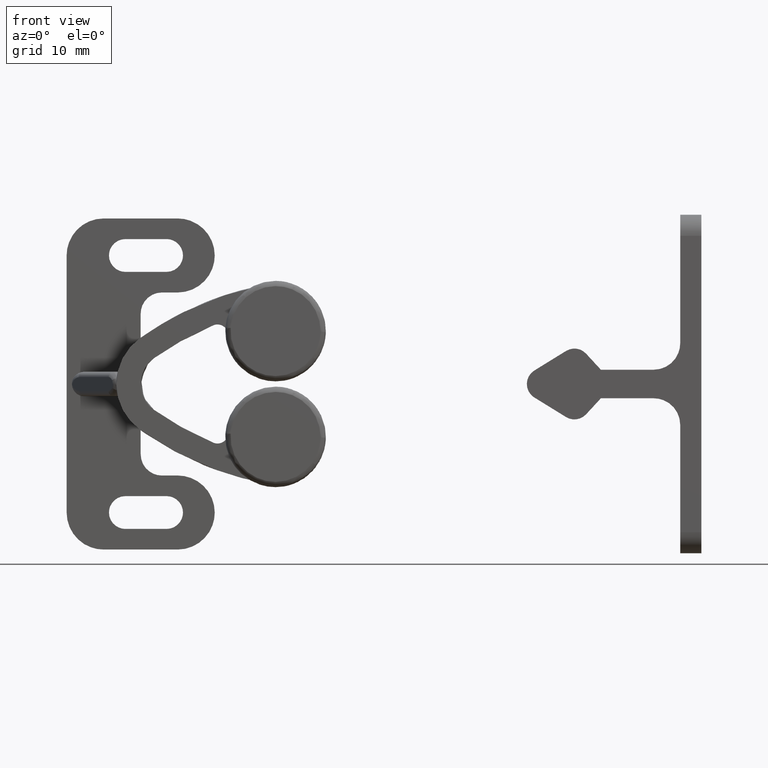
[diagram: clean part render]
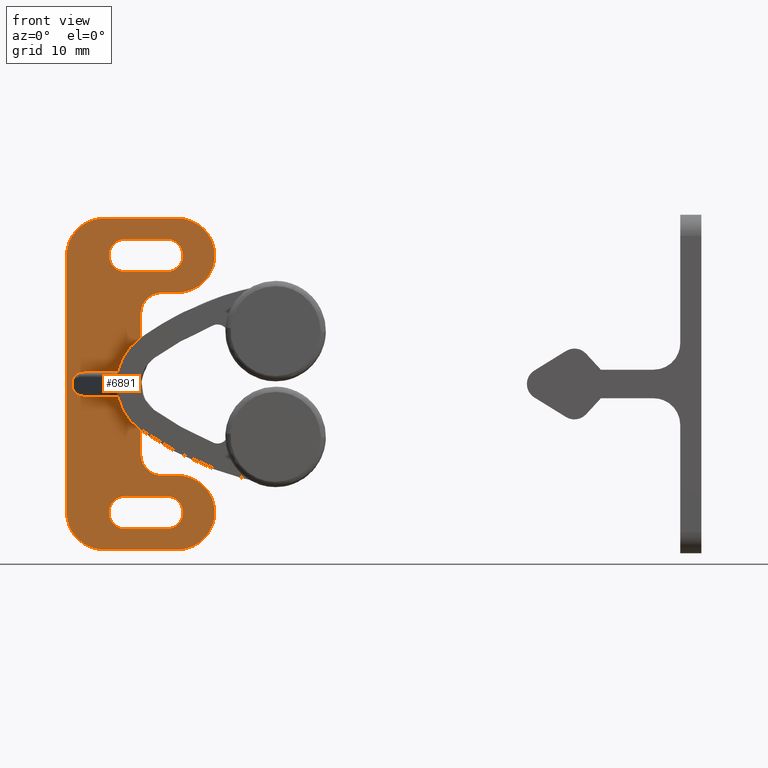
[diagram: same view with one face highlighted and labeled with its STEP entity id]
A machine part, front view. The second image highlights one B-rep face of the part: STEP entity #6891.
In plain terms, the highlighted face is a freeform B-spline surface patch.
Its self-contained STEP definition (entity closure, byte-faithful):
#3261=CARTESIAN_POINT('',(0.645658454701899,-2.300000000000080,0.560176811719487));
#3262=VERTEX_POINT('',#3261);
#3322=CARTESIAN_POINT('',(0.500000000000000,-2.300000000000080,0.0));
#3323=VERTEX_POINT('',#3322);
#3324=CARTESIAN_POINT('',(0.645658454701899,-2.300000000000080,0.560176811719487));
#3325=CARTESIAN_POINT('',(0.551758562767141,-2.300000000000080,0.391823585289309));
#3326=CARTESIAN_POINT('',(0.500000940271381,-2.300000000000080,0.192769288409554));
#3327=CARTESIAN_POINT('',(0.500000000000000,-2.300000000000080,0.0));
#3328=B_SPLINE_CURVE_WITH_KNOTS('',3,(#3324,#3325,#3326,#3327),.UNSPECIFIED.,.F.,.U.,(4,4),(0.0,0.578307865235542),.UNSPECIFIED.);
#3329=EDGE_CURVE('',#3262,#3323,#3328,.T.);
#3782=CARTESIAN_POINT('',(0.645658454701899,-2.300000000000080,-0.560176811719486));
#3783=VERTEX_POINT('',#3782);
#3851=CARTESIAN_POINT('',(0.500000000000000,-2.300000000000080,0.0));
#3852=CARTESIAN_POINT('',(0.500000000251714,-2.300000000000080,-0.192767480835903));
#3853=CARTESIAN_POINT('',(0.551759443255669,-2.300000000000080,-0.391825163918697));
#3854=CARTESIAN_POINT('',(0.645658454701899,-2.300000000000080,-0.560176811719486));
#3855=B_SPLINE_CURVE_WITH_KNOTS('',3,(#3851,#3852,#3853,#3854),.UNSPECIFIED.,.F.,.U.,(4,4),(0.0,0.578302442507709),.UNSPECIFIED.);
#3856=EDGE_CURVE('',#3323,#3783,#3855,.T.);
#3933=CARTESIAN_POINT('',(1.650000000000000,-2.300000000000095,-1.150000000000012));
#3934=VERTEX_POINT('',#3933);
#3940=CARTESIAN_POINT('',(4.826153720805030,-2.300000000000190,-1.150000000000012));
#3941=VERTEX_POINT('',#3940);
#3942=CARTESIAN_POINT('',(1.650000000000000,-2.300000000000095,-1.150000000000012));
#3943=CARTESIAN_POINT('',(4.826153720805030,-2.300000000000190,-1.150000000000012));
#3944=QUASI_UNIFORM_CURVE('',1,(#3942,#3943),.UNSPECIFIED.,.F.,.U.);
#3945=EDGE_CURVE('',#3934,#3941,#3944,.T.);
#3971=CARTESIAN_POINT('',(0.645658454701899,-2.300000000000080,-0.560176811719486));
#3972=CARTESIAN_POINT('',(0.701389225317785,-2.300000000000078,-0.660205155457563));
#3973=CARTESIAN_POINT('',(0.831282015619389,-2.300000000000082,-0.828066260431745));
#3974=CARTESIAN_POINT('',(1.093718340630972,-2.300000000000085,-1.023061504407554));
#3975=CARTESIAN_POINT('',(1.370101936284480,-2.300000000000088,-1.128674574463026));
#3976=CARTESIAN_POINT('',(1.567308729267906,-2.300000000000097,-1.150006792916363));
#3977=CARTESIAN_POINT('',(1.650000000000000,-2.300000000000095,-1.150000000000012));
#3978=B_SPLINE_CURVE_WITH_KNOTS('',3,(#3971,#3972,#3973,#3974,#3975,#3976,#3977),.UNSPECIFIED.,.F.,.U.,(4,1,1,1,4),(0.000000046369776,0.343501662729493,0.629735849961197,0.973254108693616,1.221335242217167),.UNSPECIFIED.);
#3979=EDGE_CURVE('',#3783,#3934,#3978,.T.);
#3989=CARTESIAN_POINT('',(1.650000000000000,-2.300000000000080,1.150000000000000));
#3990=VERTEX_POINT('',#3989);
#4004=CARTESIAN_POINT('',(4.826042582456370,-2.300000000000190,1.150000000000000));
#4005=VERTEX_POINT('',#4004);
#4011=CARTESIAN_POINT('',(4.826042582456370,-2.300000000000190,1.150000000000000));
#4012=CARTESIAN_POINT('',(1.650000000000000,-2.300000000000080,1.150000000000000));
#4013=QUASI_UNIFORM_CURVE('',1,(#4011,#4012),.UNSPECIFIED.,.F.,.U.);
#4014=EDGE_CURVE('',#4005,#3990,#4013,.T.);
#4068=CARTESIAN_POINT('',(9.449999999999999,-2.300000000000080,10.600000000000000));
#4069=VERTEX_POINT('',#4068);
#4075=CARTESIAN_POINT('',(10.999999999999661,-2.300000000000080,12.150001027670511));
#4076=VERTEX_POINT('',#4075);
#4077=CARTESIAN_POINT('',(9.449999999999999,-2.300000000000080,10.600000000000000));
#4078=CARTESIAN_POINT('',(9.602177149971254,-2.300000000000080,10.599930536928140));
#4079=CARTESIAN_POINT('',(9.868431586216131,-2.300000000000075,10.639552144954109));
#4080=CARTESIAN_POINT('',(10.267171764854011,-2.300000000000088,10.810416298582140));
#4081=CARTESIAN_POINT('',(10.567982751226729,-2.300000000000067,11.051129972845670));
#4082=CARTESIAN_POINT('',(10.788031201700161,-2.300000000000088,11.348016448064010));
#4083=CARTESIAN_POINT('',(10.951541804051340,-2.300000000000086,11.693558124671910));
#4084=CARTESIAN_POINT('',(11.000105057543140,-2.300000000000073,11.972453144846700));
#4085=CARTESIAN_POINT('',(10.999999999999661,-2.300000000000080,12.150001027670511));
#4086=B_SPLINE_CURVE_WITH_KNOTS('',3,(#4077,#4078,#4079,#4080,#4081,#4082,#4083,#4084,#4085),.UNSPECIFIED.,.F.,.U.,(4,1,1,1,1,1,4),(0.000000022200147,0.456518275020949,0.798923154681922,1.293483531110821,1.597827588192030,1.902187545388987,2.434795982945142),.UNSPECIFIED.);
#4087=EDGE_CURVE('',#4069,#4076,#4086,.T.);
#4089=CARTESIAN_POINT('',(9.449999999999999,-2.300000000000080,13.699999999999999));
#4090=VERTEX_POINT('',#4089);
#4091=CARTESIAN_POINT('',(10.999999999999661,-2.300000000000080,12.150001027670511));
#4092=CARTESIAN_POINT('',(11.000069330584971,-2.300000000000075,12.302176949929351));
#4093=CARTESIAN_POINT('',(10.960454844773460,-2.300000000000090,12.568439446585820));
#4094=CARTESIAN_POINT('',(10.824724731429431,-2.300000000000071,12.885049670031581));
#4095=CARTESIAN_POINT('',(10.655173350763080,-2.300000000000086,13.138790051465140));
#4096=CARTESIAN_POINT('',(10.468071242203930,-2.300000000000076,13.330547892585930));
#4097=CARTESIAN_POINT('',(10.228956513447111,-2.300000000000084,13.498938378496550));
#4098=CARTESIAN_POINT('',(9.906441741703230,-2.300000000000079,13.651514216303861));
#4099=CARTESIAN_POINT('',(9.627551603005237,-2.300000000000078,13.700137135337190));
#4100=CARTESIAN_POINT('',(9.449999999999999,-2.300000000000080,13.699999999999999));
#4101=B_SPLINE_CURVE_WITH_KNOTS('',3,(#4091,#4092,#4093,#4094,#4095,#4096,#4097,#4098,#4099,#4100),.UNSPECIFIED.,.F.,.U.,(4,1,1,1,1,1,1,4),(0.000000023607692,0.456518058999902,0.798922775865073,1.027182614871743,1.369567845664469,1.597826828413437,1.902186640050886,2.434794824492096),.UNSPECIFIED.);
#4102=EDGE_CURVE('',#4076,#4090,#4101,.T.);
#4125=CARTESIAN_POINT('',(5.550000000000000,-2.300000000000080,13.699999999999999));
#4126=VERTEX_POINT('',#4125);
#4127=CARTESIAN_POINT('',(5.550000000000000,-2.300000000000080,13.699999999999999));
#4128=CARTESIAN_POINT('',(9.449999999999999,-2.300000000000080,13.699999999999999));
#4129=QUASI_UNIFORM_CURVE('',1,(#4127,#4128),.UNSPECIFIED.,.F.,.U.);
#4130=EDGE_CURVE('',#4126,#4090,#4129,.T.);
#4188=CARTESIAN_POINT('',(4.000000000000341,-2.300000000000080,12.149998972329490));
#4189=VERTEX_POINT('',#4188);
#4190=CARTESIAN_POINT('',(5.550000000000000,-2.300000000000080,13.699999999999999));
#4191=CARTESIAN_POINT('',(5.372449373761465,-2.300000000000077,13.700125088298551));
#4192=CARTESIAN_POINT('',(5.080879529892909,-2.300000000000090,13.649316361167889));
#4193=CARTESIAN_POINT('',(4.725447667514830,-2.300000000000072,13.475808313689100));
#4194=CARTESIAN_POINT('',(4.484368521020827,-2.300000000000086,13.287656417320610));
#4195=CARTESIAN_POINT('',(4.290457954402084,-2.300000000000083,13.068355614189990));
#4196=CARTESIAN_POINT('',(4.139778663830710,-2.300000000000063,12.816984194742640));
#4197=CARTESIAN_POINT('',(4.028171206521701,-2.300000000000090,12.505051269450300));
#4198=CARTESIAN_POINT('',(3.999970140435558,-2.300000000000084,12.276807280935540));
#4199=CARTESIAN_POINT('',(4.000000000000341,-2.300000000000080,12.149998972329490));
#4200=B_SPLINE_CURVE_WITH_KNOTS('',3,(#4190,#4191,#4192,#4193,#4194,#4195,#4196,#4197,#4198,#4199),.UNSPECIFIED.,.F.,.U.,(4,1,1,1,1,1,1,4),(0.000000022198980,0.532608769133054,0.875010836173164,1.179354542480120,1.445653777580748,1.750006441966814,2.054366398546180,2.434795982945150),.UNSPECIFIED.);
#4201=EDGE_CURVE('',#4126,#4189,#4200,.T.);
#4203=CARTESIAN_POINT('',(5.550000000000000,-2.300000000000080,10.600000000000000));
#4204=VERTEX_POINT('',#4203);
#4205=CARTESIAN_POINT('',(4.000000000000341,-2.300000000000080,12.149998972329490));
#4206=CARTESIAN_POINT('',(3.999930216898552,-2.300000000000078,11.997821965764130));
#4207=CARTESIAN_POINT('',(4.039551737775362,-2.300000000000084,11.731567790264890));
#4208=CARTESIAN_POINT('',(4.210416834069042,-2.300000000000077,11.332828047303909));
#4209=CARTESIAN_POINT('',(4.451125441815677,-2.300000000000077,11.032012770553170));
#4210=CARTESIAN_POINT('',(4.727549524928079,-2.300000000000090,10.827157905546660));
#4211=CARTESIAN_POINT('',(5.068249795003972,-2.300000000000069,10.655563725067690));
#4212=CARTESIAN_POINT('',(5.347062281753838,-2.300000000000080,10.599779297328990));
#4213=CARTESIAN_POINT('',(5.550000000000000,-2.300000000000080,10.600000000000000));
#4214=B_SPLINE_CURVE_WITH_KNOTS('',3,(#4205,#4206,#4207,#4208,#4209,#4210,#4211,#4212,#4213),.UNSPECIFIED.,.F.,.U.,(4,1,1,1,1,1,4),(0.000000023608442,0.456518059000605,0.798922775865717,1.293482918502102,1.597826828413798,1.826096124500463,2.434794824492075),.UNSPECIFIED.);
#4215=EDGE_CURVE('',#4189,#4204,#4214,.T.);
#4236=CARTESIAN_POINT('',(9.449999999999999,-2.300000000000080,10.600000000000000));
#4237=CARTESIAN_POINT('',(5.550000000000000,-2.300000000000080,10.600000000000000));
#4238=QUASI_UNIFORM_CURVE('',1,(#4236,#4237),.UNSPECIFIED.,.F.,.U.);
#4239=EDGE_CURVE('',#4069,#4204,#4238,.T.);
#4295=CARTESIAN_POINT('',(9.449999999999999,-2.300000000000080,-13.699600000000000));
#4296=VERTEX_POINT('',#4295);
#4302=CARTESIAN_POINT('',(10.999999999999661,-2.300000000000080,-12.149598972329491));
#4303=VERTEX_POINT('',#4302);
#4304=CARTESIAN_POINT('',(9.449999999999999,-2.300000000000080,-13.699600000000000));
#4305=CARTESIAN_POINT('',(9.602177428811672,-2.300000000000078,-13.699662126244631));
#4306=CARTESIAN_POINT('',(9.843073335582963,-2.300000000000086,-13.663824337130411));
#4307=CARTESIAN_POINT('',(10.162154875503671,-2.300000000000075,-13.536199406452830));
#4308=CARTESIAN_POINT('',(10.420527636405520,-2.300000000000082,-13.372602259801210));
#4309=CARTESIAN_POINT('',(10.648815939485910,-2.300000000000080,-13.149850438574861));
#4310=CARTESIAN_POINT('',(10.839965599632061,-2.300000000000074,-12.863791562468769));
#4311=CARTESIAN_POINT('',(10.968710542646740,-2.300000000000098,-12.530018282327619));
#4312=CARTESIAN_POINT('',(11.000033648026101,-2.300000000000066,-12.276408424636220));
#4313=CARTESIAN_POINT('',(10.999999999999661,-2.300000000000080,-12.149598972329491));
#4314=B_SPLINE_CURVE_WITH_KNOTS('',3,(#4304,#4305,#4306,#4307,#4308,#4309,#4310,#4311,#4312,#4313),.UNSPECIFIED.,.F.,.U.,(4,1,1,1,1,1,1,4),(0.000000022199703,0.456518275020522,0.722834304823640,1.027183101615401,1.369568494966837,1.673916480986660,2.054366398546098,2.434795982945160),.UNSPECIFIED.);
#4315=EDGE_CURVE('',#4296,#4303,#4314,.T.);
#4317=CARTESIAN_POINT('',(9.449999999999999,-2.300000000000080,-10.599600000000001));
#4318=VERTEX_POINT('',#4317);
#4319=CARTESIAN_POINT('',(10.999999999999661,-2.300000000000080,-12.149598972329491));
#4320=CARTESIAN_POINT('',(11.000010600235131,-2.300000000000082,-12.048155527955871));
#4321=CARTESIAN_POINT('',(10.978772699831440,-2.300000000000078,-11.832579409002960));
#4322=CARTESIAN_POINT('',(10.882448693073179,-2.300000000000081,-11.528512582527791));
#4323=CARTESIAN_POINT('',(10.719153700720931,-2.300000000000078,-11.240247596925700));
#4324=CARTESIAN_POINT('',(10.507865582632030,-2.300000000000084,-11.001307510785640));
#4325=CARTESIAN_POINT('',(10.252000119653850,-2.300000000000071,-10.811552552739380));
#4326=CARTESIAN_POINT('',(9.906436171796388,-2.300000000000106,-10.648088434124009));
#4327=CARTESIAN_POINT('',(9.627553920787014,-2.300000000000047,-10.599461728474290));
#4328=CARTESIAN_POINT('',(9.449999999999999,-2.300000000000080,-10.599600000000001));
#4329=B_SPLINE_CURVE_WITH_KNOTS('',3,(#4319,#4320,#4321,#4322,#4323,#4324,#4325,#4326,#4327,#4328),.UNSPECIFIED.,.F.,.U.,(4,1,1,1,1,1,1,4),(0.000000023608866,0.304338703581390,0.646744180293303,0.951096932577137,1.293482918502487,1.597826828414154,1.902186640051371,2.434794824492057),.UNSPECIFIED.);
#4330=EDGE_CURVE('',#4303,#4318,#4329,.T.);
#4352=CARTESIAN_POINT('',(5.550000000000000,-2.300000000000080,-13.699600000000000));
#4353=VERTEX_POINT('',#4352);
#4359=CARTESIAN_POINT('',(5.550000000000000,-2.300000000000080,-13.699600000000000));
#4360=CARTESIAN_POINT('',(9.449999999999999,-2.300000000000080,-13.699600000000000));
#4361=QUASI_UNIFORM_CURVE('',1,(#4359,#4360),.UNSPECIFIED.,.F.,.U.);
#4362=EDGE_CURVE('',#4353,#4296,#4361,.T.);
#4416=CARTESIAN_POINT('',(5.550000000000000,-2.300000000000080,-10.599600000000001));
#4417=VERTEX_POINT('',#4416);
#4423=CARTESIAN_POINT('',(4.000000000000340,-2.300000000000079,-12.149601027670510));
#4424=VERTEX_POINT('',#4423);
#4425=CARTESIAN_POINT('',(5.550000000000000,-2.300000000000080,-10.599600000000001));
#4426=CARTESIAN_POINT('',(5.448556043860420,-2.300000000000079,-10.599589607299681));
#4427=CARTESIAN_POINT('',(5.232980630950999,-2.300000000000081,-10.620828008075531));
#4428=CARTESIAN_POINT('',(4.928913164262871,-2.300000000000080,-10.717151521429860));
#4429=CARTESIAN_POINT('',(4.640648421576642,-2.300000000000076,-10.880447111473950));
#4430=CARTESIAN_POINT('',(4.401708507191095,-2.300000000000086,-11.091734918229481));
#4431=CARTESIAN_POINT('',(4.211952718647847,-2.300000000000060,-11.347600881675060));
#4432=CARTESIAN_POINT('',(4.048488588707504,-2.300000000000106,-11.693164554255590));
#4433=CARTESIAN_POINT('',(3.999861657463857,-2.300000000000050,-11.972047003900309));
#4434=CARTESIAN_POINT('',(4.000000000000340,-2.300000000000079,-12.149601027670510));
#4435=B_SPLINE_CURVE_WITH_KNOTS('',3,(#4425,#4426,#4427,#4428,#4429,#4430,#4431,#4432,#4433,#4434),.UNSPECIFIED.,.F.,.U.,(4,1,1,1,1,1,1,4),(0.000000022200773,0.304338847109662,0.646744486842177,0.951097383423423,1.293483531110937,1.597827588192091,1.902187545389026,2.434795982945147),.UNSPECIFIED.);
#4436=EDGE_CURVE('',#4417,#4424,#4435,.T.);
#4438=CARTESIAN_POINT('',(4.000000000000340,-2.300000000000079,-12.149601027670510));
#4439=CARTESIAN_POINT('',(3.999873652295324,-2.300000000000077,-12.327151886558321));
#4440=CARTESIAN_POINT('',(4.050684294561247,-2.300000000000079,-12.618720712753261));
#4441=CARTESIAN_POINT('',(4.224190736867698,-2.300000000000083,-12.974153683424101));
#4442=CARTESIAN_POINT('',(4.412343261715545,-2.300000000000074,-13.215231858933450));
#4443=CARTESIAN_POINT('',(4.631643253695056,-2.300000000000077,-13.409142823036619));
#4444=CARTESIAN_POINT('',(4.883015102655911,-2.300000000000097,-13.559821496972820));
#4445=CARTESIAN_POINT('',(5.194947954438862,-2.300000000000065,-13.671428941270941));
#4446=CARTESIAN_POINT('',(5.423191761721711,-2.300000000000092,-13.699629633525261));
#4447=CARTESIAN_POINT('',(5.550000000000000,-2.300000000000080,-13.699600000000000));
#4448=B_SPLINE_CURVE_WITH_KNOTS('',3,(#4438,#4439,#4440,#4441,#4442,#4443,#4444,#4445,#4446,#4447),.UNSPECIFIED.,.F.,.U.,(4,1,1,1,1,1,1,4),(0.000000023607901,0.532608516883788,0.875010421306120,1.179353984185056,1.445653091455672,1.750005609037761,2.054365421293856,2.434794824492080),.UNSPECIFIED.);
#4449=EDGE_CURVE('',#4424,#4353,#4448,.T.);
#4466=CARTESIAN_POINT('',(9.449999999999999,-2.300000000000080,-10.599600000000001));
#4467=CARTESIAN_POINT('',(5.550000000000000,-2.300000000000080,-10.599600000000001));
#4468=QUASI_UNIFORM_CURVE('',1,(#4466,#4467),.UNSPECIFIED.,.F.,.U.);
#4469=EDGE_CURVE('',#4318,#4417,#4468,.T.);
#4489=CARTESIAN_POINT('',(7.0,-2.300000000000080,6.650000000000000));
#4490=VERTEX_POINT('',#4489);
#4496=CARTESIAN_POINT('',(7.0,-2.300000000000080,-6.649600000000000));
#4497=VERTEX_POINT('',#4496);
#4498=CARTESIAN_POINT('',(7.0,-2.300000000000080,6.650000000000000));
#4499=CARTESIAN_POINT('',(7.0,-2.300000000000080,-6.649600000000000));
#4500=QUASI_UNIFORM_CURVE('',1,(#4498,#4499),.UNSPECIFIED.,.F.,.U.);
#4501=EDGE_CURVE('',#4490,#4497,#4500,.T.);
#4539=CARTESIAN_POINT('',(9.0,-2.300000000000080,8.650000000000000));
#4540=VERTEX_POINT('',#4539);
#4546=CARTESIAN_POINT('',(9.0,-2.300000000000080,8.650000000000000));
#4547=CARTESIAN_POINT('',(8.770895350710701,-2.300000000000091,8.650180220129471));
#4548=CARTESIAN_POINT('',(8.443768936677783,-2.300000000000070,8.593131583594584));
#4549=CARTESIAN_POINT('',(8.008786856873487,-2.300000000000084,8.400282633075559));
#4550=CARTESIAN_POINT('',(7.649004680101991,-2.300000000000069,8.153539715954167));
#4551=CARTESIAN_POINT('',(7.328338382828942,-2.300000000000106,7.786339593424384));
#4552=CARTESIAN_POINT('',(7.069287545630592,-2.300000000000055,7.271650263681480));
#4553=CARTESIAN_POINT('',(6.999795408233823,-2.300000000000098,6.887289878593142));
#4554=CARTESIAN_POINT('',(7.0,-2.300000000000080,6.650000000000000));
#4555=B_SPLINE_CURVE_WITH_KNOTS('',3,(#4546,#4547,#4548,#4549,#4550,#4551,#4552,#4553,#4554),.UNSPECIFIED.,.F.,.U.,(4,1,1,1,1,1,4),(0.000000074894063,0.687225763535501,0.981758553000316,1.423561211544995,1.988040511486450,2.429842028713400,3.141612365757113),.UNSPECIFIED.);
#4556=EDGE_CURVE('',#4540,#4490,#4555,.T.);
#4574=CARTESIAN_POINT('',(10.500000000000000,-2.300000000000080,8.650000000000000));
#4575=VERTEX_POINT('',#4574);
#4581=CARTESIAN_POINT('',(10.500000000000000,-2.300000000000080,8.650000000000000));
#4582=CARTESIAN_POINT('',(9.0,-2.300000000000080,8.650000000000000));
#4583=QUASI_UNIFORM_CURVE('',1,(#4581,#4582),.UNSPECIFIED.,.F.,.U.);
#4584=EDGE_CURVE('',#4575,#4540,#4583,.T.);
#4640=CARTESIAN_POINT('',(10.500000000000000,-2.300000000000080,15.650000000000000));
#4641=VERTEX_POINT('',#4640);
#4647=CARTESIAN_POINT('',(13.999999999999931,-2.300000000000079,12.150000670134700));
#4648=VERTEX_POINT('',#4647);
#4649=CARTESIAN_POINT('',(13.999999999999931,-2.300000000000079,12.150000670134700));
#4650=CARTESIAN_POINT('',(14.000045301527910,-2.300000000000080,12.407712236906470));
#4651=CARTESIAN_POINT('',(13.947571989546800,-2.300000000000080,12.880152629483600));
#4652=CARTESIAN_POINT('',(13.713023458982869,-2.300000000000079,13.605200711065310));
#4653=CARTESIAN_POINT('',(13.299051695778781,-2.300000000000088,14.315634596707669));
#4654=CARTESIAN_POINT('',(12.706481093302219,-2.300000000000071,14.908155415957291));
#4655=CARTESIAN_POINT('',(12.032806074181281,-2.300000000000077,15.323189017847319));
#4656=CARTESIAN_POINT('',(11.316044448660429,-2.300000000000087,15.584627173145110));
#4657=CARTESIAN_POINT('',(10.786346943229720,-2.300000000000049,15.650068263232960));
#4658=CARTESIAN_POINT('',(10.500000000000000,-2.300000000000080,15.650000000000000));
#4659=B_SPLINE_CURVE_WITH_KNOTS('',3,(#4649,#4650,#4651,#4652,#4653,#4654,#4655,#4656,#4657,#4658),.UNSPECIFIED.,.F.,.U.,(4,1,1,1,1,1,1,4),(0.000000061555598,0.773127522442387,1.417407895740149,2.276444875302687,3.221378392386046,3.908603319438634,4.638796333892150,5.497821262364265),.UNSPECIFIED.);
#4660=EDGE_CURVE('',#4648,#4641,#4659,.T.);
#4662=CARTESIAN_POINT('',(10.500000000000000,-2.300000000000080,8.650000000000000));
#4663=CARTESIAN_POINT('',(10.786348004934020,-2.300000000000083,8.649932591986387));
#4664=CARTESIAN_POINT('',(11.258772709439789,-2.300000000000070,8.708320576216682));
#4665=CARTESIAN_POINT('',(11.925670607395389,-2.300000000000099,8.933179682536430));
#4666=CARTESIAN_POINT('',(12.467621034880210,-2.300000000000023,9.231466846871312));
#4667=CARTESIAN_POINT('',(12.978602636433120,-2.300000000000167,9.650814229288109));
#4668=CARTESIAN_POINT('',(13.376880229362319,-2.299999999999951,10.124155464581730));
#4669=CARTESIAN_POINT('',(13.663080735880040,-2.300000000000224,10.622293016710170));
#4670=CARTESIAN_POINT('',(13.920243241340019,-2.299999999999958,11.276740487592580));
#4671=CARTESIAN_POINT('',(14.000169397949900,-2.300000000000141,11.792046803519940));
#4672=CARTESIAN_POINT('',(13.999999999999931,-2.300000000000079,12.150000670134700));
#4673=B_SPLINE_CURVE_WITH_KNOTS('',3,(#4662,#4663,#4664,#4665,#4666,#4667,#4668,#4669,#4670,#4671,#4672),.UNSPECIFIED.,.F.,.U.,(4,1,1,1,1,1,1,1,4),(0.000000061315972,0.859026330035002,1.417408090285178,2.104638401593760,2.705977362098832,3.393181725469709,3.951557938601835,4.424029377765240,5.497822017767022),.UNSPECIFIED.);
#4674=EDGE_CURVE('',#4575,#4648,#4673,.T.);
#4692=CARTESIAN_POINT('',(3.500000000000000,-2.300000000000080,15.650000000000000));
#4693=VERTEX_POINT('',#4692);
#4699=CARTESIAN_POINT('',(3.500000000000000,-2.300000000000080,15.650000000000000));
#4700=CARTESIAN_POINT('',(10.500000000000000,-2.300000000000080,15.650000000000000));
#4701=QUASI_UNIFORM_CURVE('',1,(#4699,#4700),.UNSPECIFIED.,.F.,.U.);
#4702=EDGE_CURVE('',#4693,#4641,#4701,.T.);
#4738=CARTESIAN_POINT('',(0.0,-2.300000000000080,12.150000000000000));
#4739=VERTEX_POINT('',#4738);
#4745=CARTESIAN_POINT('',(3.500000000000000,-2.300000000000080,15.650000000000000));
#4746=CARTESIAN_POINT('',(3.242291988536481,-2.300000000000085,15.650034767766201));
#4747=CARTESIAN_POINT('',(2.683925245733753,-2.300000000000072,15.588098764425290));
#4748=CARTESIAN_POINT('',(1.910855579898648,-2.300000000000084,15.306169748073801));
#4749=CARTESIAN_POINT('',(1.276112229303821,-2.300000000000074,14.881949389679971));
#4750=CARTESIAN_POINT('',(0.778206470784862,-2.300000000000091,14.384052208078080));
#4751=CARTESIAN_POINT('',(0.431168658413842,-2.300000000000073,13.871501150559141));
#4752=CARTESIAN_POINT('',(0.186842400927953,-2.300000000000073,13.320259610751920));
#4753=CARTESIAN_POINT('',(0.037014173791768,-2.300000000000084,12.765628265720141));
#4754=CARTESIAN_POINT('',(-0.000023148868590,-2.300000000000079,12.364757116957010));
#4755=CARTESIAN_POINT('',(0.0,-2.300000000000080,12.150000000000000));
#4756=B_SPLINE_CURVE_WITH_KNOTS('',3,(#4745,#4746,#4747,#4748,#4749,#4750,#4751,#4752,#4753,#4754,#4755),.UNSPECIFIED.,.F.,.U.,(4,1,1,1,1,1,1,1,4),(0.000000061435533,0.773127575410295,1.675119705516017,2.448258145096077,3.049564662217882,3.779746846921648,4.295174822090905,4.853550996497727,5.497821640065657),.UNSPECIFIED.);
#4757=EDGE_CURVE('',#4693,#4739,#4756,.T.);
#4775=CARTESIAN_POINT('',(0.0,-2.300000000000080,-12.149600000000000));
#4776=VERTEX_POINT('',#4775);
#4782=CARTESIAN_POINT('',(0.0,-2.300000000000080,-12.149600000000000));
#4783=CARTESIAN_POINT('',(0.0,-2.300000000000080,12.150000000000000));
#4784=QUASI_UNIFORM_CURVE('',1,(#4782,#4783),.UNSPECIFIED.,.F.,.U.);
#4785=EDGE_CURVE('',#4776,#4739,#4784,.T.);
#4821=CARTESIAN_POINT('',(3.500000000000000,-2.300000000000080,-15.649600000000000));
#4822=VERTEX_POINT('',#4821);
#4828=CARTESIAN_POINT('',(0.0,-2.300000000000080,-12.149600000000000));
#4829=CARTESIAN_POINT('',(-0.000122631071718,-2.300000000000087,-12.478906921594850));
#4830=CARTESIAN_POINT('',(0.075328087931255,-2.300000000000067,-13.008568881687831));
#4831=CARTESIAN_POINT('',(0.328796278380991,-2.300000000000095,-13.665508185739609));
#4832=CARTESIAN_POINT('',(0.646839575750166,-2.300000000000061,-14.211264475948679));
#4833=CARTESIAN_POINT('',(1.107821446206418,-2.300000000000100,-14.745759142228071));
#4834=CARTESIAN_POINT('',(1.712635197312910,-2.300000000000062,-15.188550449230620));
#4835=CARTESIAN_POINT('',(2.289429699464202,-2.300000000000082,-15.448422376066580));
#4836=CARTESIAN_POINT('',(2.870063632049581,-2.300000000000110,-15.609110095839480));
#4837=CARTESIAN_POINT('',(3.256609002128737,-2.300000000000066,-15.649634699212530));
#4838=CARTESIAN_POINT('',(3.500000000000000,-2.300000000000080,-15.649600000000000));
#4839=B_SPLINE_CURVE_WITH_KNOTS('',3,(#4828,#4829,#4830,#4831,#4832,#4833,#4834,#4835,#4836,#4837,#4838),.UNSPECIFIED.,.F.,.U.,(4,1,1,1,1,1,1,1,4),(0.000000061436183,0.987882808921427,1.589218271930889,2.104638257249981,2.877751714434648,3.693845731916148,4.338128901103085,4.767652720396304,5.497821640065653),.UNSPECIFIED.);
#4840=EDGE_CURVE('',#4776,#4822,#4839,.T.);
#4858=CARTESIAN_POINT('',(10.500000000000000,-2.300000000000080,-15.649600000000000));
#4859=VERTEX_POINT('',#4858);
#4865=CARTESIAN_POINT('',(10.500000000000000,-2.300000000000080,-15.649600000000000));
#4866=CARTESIAN_POINT('',(3.500000000000000,-2.300000000000080,-15.649600000000000));
#4867=QUASI_UNIFORM_CURVE('',1,(#4865,#4866),.UNSPECIFIED.,.F.,.U.);
#4868=EDGE_CURVE('',#4859,#4822,#4867,.T.);
#4924=CARTESIAN_POINT('',(10.500000000000000,-2.300000000000080,-8.649600000000000));
#4925=VERTEX_POINT('',#4924);
#4931=CARTESIAN_POINT('',(13.999999999999931,-2.300000000000079,-12.149599329865300));
#4932=VERTEX_POINT('',#4931);
#4933=CARTESIAN_POINT('',(13.999999999999931,-2.300000000000079,-12.149599329865300));
#4934=CARTESIAN_POINT('',(14.000119007845081,-2.300000000000080,-11.820295582533911));
#4935=CARTESIAN_POINT('',(13.918566992130680,-2.300000000000078,-11.247675238442699));
#4936=CARTESIAN_POINT('',(13.630900760504799,-2.300000000000083,-10.541033671143200));
#4937=CARTESIAN_POINT('',(13.320531986943040,-2.300000000000077,-10.057560913399790));
#4938=CARTESIAN_POINT('',(12.955146973172431,-2.300000000000089,-9.633951391846029));
#4939=CARTESIAN_POINT('',(12.525847576117000,-2.300000000000046,-9.272720607975463));
#4940=CARTESIAN_POINT('',(12.015254352003170,-2.300000000000133,-8.979355898546974));
#4941=CARTESIAN_POINT('',(11.358954341390090,-2.300000000000031,-8.726123966692496));
#4942=CARTESIAN_POINT('',(10.843629620234600,-2.300000000000108,-8.649456659479842));
#4943=CARTESIAN_POINT('',(10.500000000000000,-2.300000000000080,-8.649600000000000));
#4944=B_SPLINE_CURVE_WITH_KNOTS('',3,(#4933,#4934,#4935,#4936,#4937,#4938,#4939,#4940,#4941,#4942,#4943),.UNSPECIFIED.,.F.,.U.,(4,1,1,1,1,1,1,1,4),(0.000000061547234,0.987882741147319,1.718075340858928,2.276444875298155,2.705976990958611,3.393181259820854,3.951557395505859,4.466985335243474,5.497821262364293),.UNSPECIFIED.);
#4945=EDGE_CURVE('',#4932,#4925,#4944,.T.);
#4947=CARTESIAN_POINT('',(10.500000000000000,-2.300000000000080,-15.649600000000000));
#4948=CARTESIAN_POINT('',(10.700440825450400,-2.300000000000081,-15.649616286993400));
#4949=CARTESIAN_POINT('',(11.101315196430701,-2.300000000000078,-15.615072153390180));
#4950=CARTESIAN_POINT('',(11.684928961722990,-2.300000000000079,-15.461258473348000));
#4951=CARTESIAN_POINT('',(12.285931896180420,-2.300000000000079,-15.186009765237729));
#4952=CARTESIAN_POINT('',(12.787908279989820,-2.300000000000086,-14.823163975300311));
#4953=CARTESIAN_POINT('',(13.255972270160781,-2.300000000000072,-14.337563575831981));
#4954=CARTESIAN_POINT('',(13.600073894212350,-2.300000000000094,-13.822553763962871));
#4955=CARTESIAN_POINT('',(13.913562278102599,-2.300000000000068,-13.065797971343271));
#4956=CARTESIAN_POINT('',(14.000178391663461,-2.300000000000088,-12.507554513220080));
#4957=CARTESIAN_POINT('',(13.999999999999931,-2.300000000000079,-12.149599329865300));
#4958=B_SPLINE_CURVE_WITH_KNOTS('',3,(#4947,#4948,#4949,#4950,#4951,#4952,#4953,#4954,#4955,#4956,#4957),.UNSPECIFIED.,.F.,.U.,(4,1,1,1,1,1,1,1,4),(0.000000061324497,0.601322599850270,1.202648084702446,1.803974373422532,2.577108431560351,3.049564872083557,3.822703678127683,4.424029377767000,5.497822017766968),.UNSPECIFIED.);
#4959=EDGE_CURVE('',#4859,#4932,#4958,.T.);
#4977=CARTESIAN_POINT('',(9.0,-2.300000000000080,-8.649600000000000));
#4978=VERTEX_POINT('',#4977);
#4984=CARTESIAN_POINT('',(9.0,-2.300000000000080,-8.649600000000000));
#4985=CARTESIAN_POINT('',(10.500000000000000,-2.300000000000080,-8.649600000000000));
#4986=QUASI_UNIFORM_CURVE('',1,(#4984,#4985),.UNSPECIFIED.,.F.,.U.);
#4987=EDGE_CURVE('',#4978,#4925,#4986,.T.);
#5020=CARTESIAN_POINT('',(7.0,-2.300000000000080,-6.649600000000000));
#5021=CARTESIAN_POINT('',(6.999982157624480,-2.300000000000084,-6.805037157573642));
#5022=CARTESIAN_POINT('',(7.042109634334373,-2.300000000000071,-7.165030592779471));
#5023=CARTESIAN_POINT('',(7.238688230063568,-2.300000000000087,-7.648051790452512));
#5024=CARTESIAN_POINT('',(7.550496571111960,-2.300000000000077,-8.052536256276143));
#5025=CARTESIAN_POINT('',(7.944961676312483,-2.300000000000099,-8.376350725853452));
#5026=CARTESIAN_POINT('',(8.435484056431639,-2.300000000000042,-8.597418200720790));
#5027=CARTESIAN_POINT('',(8.820016315499132,-2.300000000000106,-8.649637166885926));
#5028=CARTESIAN_POINT('',(9.0,-2.300000000000080,-8.649600000000000));
#5029=B_SPLINE_CURVE_WITH_KNOTS('',3,(#5020,#5021,#5022,#5023,#5024,#5025,#5026,#5027,#5028),.UNSPECIFIED.,.F.,.U.,(4,1,1,1,1,1,4),(0.000000074898581,0.466324219751527,1.079931690375880,1.546284991674121,1.988040511487677,2.601650445291360,3.141612365757086),.UNSPECIFIED.);
#5030=EDGE_CURVE('',#4497,#4978,#5029,.T.);
#5539=CARTESIAN_POINT('',(6.999829873938309,-2.300000000000095,-4.370067139208510));
#5540=VERTEX_POINT('',#5539);
#5546=CARTESIAN_POINT('',(6.999829873938309,-2.300000000000095,4.370567139208470));
#5547=VERTEX_POINT('',#5546);
#5548=CARTESIAN_POINT('',(6.999829873938309,-2.300000000000095,4.370567139208470));
#5549=CARTESIAN_POINT('',(6.999829873938309,-2.300000000000095,-4.370067139208510));
#5550=QUASI_UNIFORM_CURVE('',1,(#5548,#5549),.UNSPECIFIED.,.F.,.U.);
#5551=EDGE_CURVE('',#5547,#5540,#5550,.T.);
#6415=CARTESIAN_POINT('',(6.911631425836029,-2.300000000000190,-4.307072874493940));
#6416=VERTEX_POINT('',#6415);
#6422=CARTESIAN_POINT('',(6.911631425836029,-2.300000000000190,-4.307072874493940));
#6423=CARTESIAN_POINT('',(6.999829873938309,-2.300000000000095,-4.370067139208510));
#6424=QUASI_UNIFORM_CURVE('',1,(#6422,#6423),.UNSPECIFIED.,.F.,.U.);
#6425=EDGE_CURVE('',#6416,#5540,#6424,.T.);
#6471=CARTESIAN_POINT('',(4.826153720805030,-2.300000000000190,-1.150000000000012));
#6472=CARTESIAN_POINT('',(4.926599996276461,-2.300000000000193,-1.602477568961088));
#6473=CARTESIAN_POINT('',(5.212535978362159,-2.300000000000191,-2.385199925814047));
#6474=CARTESIAN_POINT('',(5.927114346212036,-2.300000000000186,-3.466983783733256));
#6475=CARTESIAN_POINT('',(6.534868991605976,-2.300000000000196,-4.037122723301774));
#6476=CARTESIAN_POINT('',(6.911631425836029,-2.300000000000190,-4.307072874493940));
#6477=B_SPLINE_CURVE_WITH_KNOTS('',3,(#6471,#6472,#6473,#6474,#6475,#6476),.UNSPECIFIED.,.F.,.U.,(4,1,1,4),(0.000000010709751,1.390445333918281,2.478607383062548,3.869052706271219),.UNSPECIFIED.);
#6478=EDGE_CURVE('',#3941,#6416,#6477,.T.);
#6500=CARTESIAN_POINT('',(6.911631425836020,-2.300000000000190,4.307572874493925));
#6501=VERTEX_POINT('',#6500);
#6507=CARTESIAN_POINT('',(6.911631425836020,-2.300000000000190,4.307572874493925));
#6508=CARTESIAN_POINT('',(6.633159976767415,-2.300000000000190,4.107968771565376));
#6509=CARTESIAN_POINT('',(6.221820066677317,-2.300000000000186,3.747840098427552));
#6510=CARTESIAN_POINT('',(5.664076821074962,-2.300000000000195,3.082705878256527));
#6511=CARTESIAN_POINT('',(5.167276501224122,-2.300000000000189,2.271577232394086));
#6512=CARTESIAN_POINT('',(4.917765120483158,-2.300000000000189,1.563178651804959));
#6513=CARTESIAN_POINT('',(4.826042582456370,-2.300000000000190,1.150000000000000));
#6514=B_SPLINE_CURVE_WITH_KNOTS('',3,(#6507,#6508,#6509,#6510,#6511,#6512,#6513),.UNSPECIFIED.,.F.,.U.,(4,1,1,1,4),(0.000000010716818,1.027853534863509,1.632474938064500,2.599863123646028,3.869564917425465),.UNSPECIFIED.);
#6515=EDGE_CURVE('',#6501,#4005,#6514,.T.);
#6539=CARTESIAN_POINT('',(6.999829873938309,-2.300000000000095,4.370567139208470));
#6540=CARTESIAN_POINT('',(6.911631425836020,-2.300000000000190,4.307572874493925));
#6541=QUASI_UNIFORM_CURVE('',1,(#6539,#6540),.UNSPECIFIED.,.F.,.U.);
#6542=EDGE_CURVE('',#5547,#6501,#6541,.T.);
#6832=CARTESIAN_POINT('',(-0.699299972865278,-2.300000000000095,-17.213014847511150));
#6833=CARTESIAN_POINT('',(14.699300348374480,-2.300000000000095,-17.213014847511150));
#6834=CARTESIAN_POINT('',(-0.699299972865278,-2.300000000000095,17.213413448310000));
#6835=CARTESIAN_POINT('',(14.699300348374480,-2.300000000000095,17.213413448310000));
#6836=B_SPLINE_SURFACE_WITH_KNOTS('',1,1,((#6832,#6834),(#6833,#6835)),.UNSPECIFIED.,.F.,.F.,.U.,(2,2),(2,2),(0.0,15.398600321239750),(0.0,34.426428295821147),.UNSPECIFIED.);
#6837=ORIENTED_EDGE('',*,*,#4757,.T.);
#6838=ORIENTED_EDGE('',*,*,#4785,.F.);
#6839=ORIENTED_EDGE('',*,*,#4840,.T.);
#6840=ORIENTED_EDGE('',*,*,#4868,.F.);
#6841=ORIENTED_EDGE('',*,*,#4959,.T.);
#6842=ORIENTED_EDGE('',*,*,#4945,.T.);
#6843=ORIENTED_EDGE('',*,*,#4987,.F.);
#6844=ORIENTED_EDGE('',*,*,#5030,.F.);
#6845=ORIENTED_EDGE('',*,*,#4501,.F.);
#6846=ORIENTED_EDGE('',*,*,#4556,.F.);
#6847=ORIENTED_EDGE('',*,*,#4584,.F.);
#6848=ORIENTED_EDGE('',*,*,#4674,.T.);
#6849=ORIENTED_EDGE('',*,*,#4660,.T.);
#6850=ORIENTED_EDGE('',*,*,#4702,.F.);
#6851=EDGE_LOOP('',(#6837,#6838,#6839,#6840,#6841,#6842,#6843,#6844,#6845,#6846,#6847,#6848,#6849,#6850));
#6852=FACE_OUTER_BOUND('',#6851,.T.);
#6853=CARTESIAN_POINT('',(1.650000000000000,-2.300000000000080,1.150000000000000));
#6854=CARTESIAN_POINT('',(1.548220022254714,-2.300000000000080,1.150032836145912));
#6855=CARTESIAN_POINT('',(1.357401744085204,-2.300000000000082,1.124500796767320));
#6856=CARTESIAN_POINT('',(1.131573297348785,-2.300000000000079,1.033848336511220));
#6857=CARTESIAN_POINT('',(0.872933077794087,-2.300000000000077,0.870265505952763));
#6858=CARTESIAN_POINT('',(0.726044899090673,-2.300000000000070,0.704776230227727));
#6859=CARTESIAN_POINT('',(0.645658454701899,-2.300000000000080,0.560176811719487));
#6860=B_SPLINE_CURVE_WITH_KNOTS('',3,(#6853,#6854,#6855,#6856,#6857,#6858,#6859),.UNSPECIFIED.,.F.,.U.,(4,1,1,1,4),(0.000000046369916,0.305333845331733,0.572507493016734,0.725157966441742,1.221335242217161),.UNSPECIFIED.);
#6861=EDGE_CURVE('',#3990,#3262,#6860,.T.);
#6862=ORIENTED_EDGE('',*,*,#6861,.F.);
#6863=ORIENTED_EDGE('',*,*,#4014,.F.);
#6864=ORIENTED_EDGE('',*,*,#6515,.F.);
#6865=ORIENTED_EDGE('',*,*,#6542,.F.);
#6866=ORIENTED_EDGE('',*,*,#5551,.T.);
#6867=ORIENTED_EDGE('',*,*,#6425,.F.);
#6868=ORIENTED_EDGE('',*,*,#6478,.F.);
#6869=ORIENTED_EDGE('',*,*,#3945,.F.);
#6870=ORIENTED_EDGE('',*,*,#3979,.F.);
#6871=ORIENTED_EDGE('',*,*,#3856,.F.);
#6872=ORIENTED_EDGE('',*,*,#3329,.F.);
#6873=EDGE_LOOP('',(#6862,#6863,#6864,#6865,#6866,#6867,#6868,#6869,#6870,#6871,#6872));
#6874=FACE_BOUND('',#6873,.T.);
#6875=ORIENTED_EDGE('',*,*,#4469,.F.);
#6876=ORIENTED_EDGE('',*,*,#4330,.F.);
#6877=ORIENTED_EDGE('',*,*,#4315,.F.);
#6878=ORIENTED_EDGE('',*,*,#4362,.F.);
#6879=ORIENTED_EDGE('',*,*,#4449,.F.);
#6880=ORIENTED_EDGE('',*,*,#4436,.F.);
#6881=EDGE_LOOP('',(#6875,#6876,#6877,#6878,#6879,#6880));
#6882=FACE_BOUND('',#6881,.T.);
#6883=ORIENTED_EDGE('',*,*,#4239,.T.);
#6884=ORIENTED_EDGE('',*,*,#4215,.F.);
#6885=ORIENTED_EDGE('',*,*,#4201,.F.);
#6886=ORIENTED_EDGE('',*,*,#4130,.T.);
#6887=ORIENTED_EDGE('',*,*,#4102,.F.);
#6888=ORIENTED_EDGE('',*,*,#4087,.F.);
#6889=EDGE_LOOP('',(#6883,#6884,#6885,#6886,#6887,#6888));
#6890=FACE_BOUND('',#6889,.T.);
#6891=ADVANCED_FACE('',(#6852,#6874,#6882,#6890),#6836,.T.);